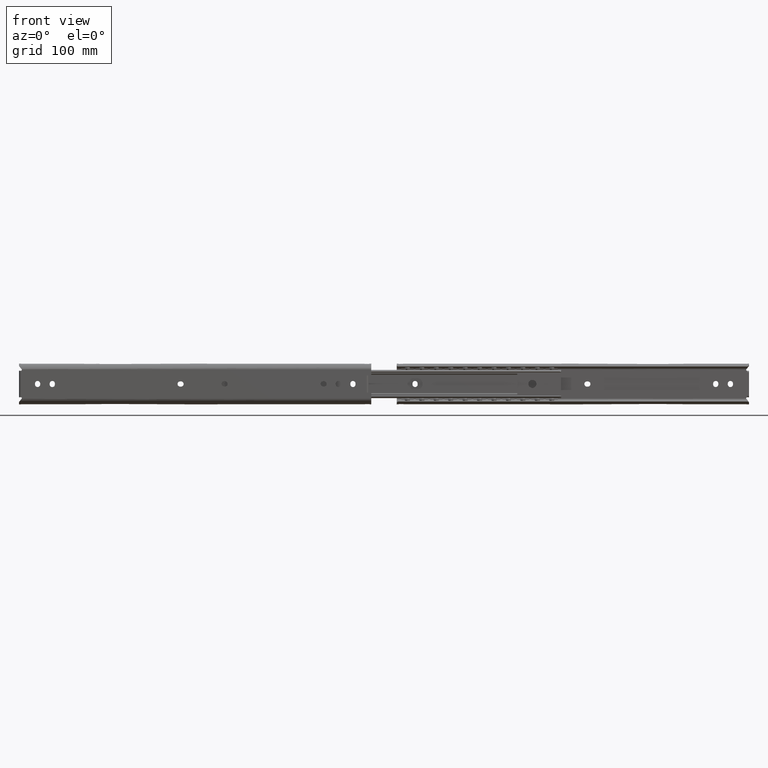
[diagram: clean part render]
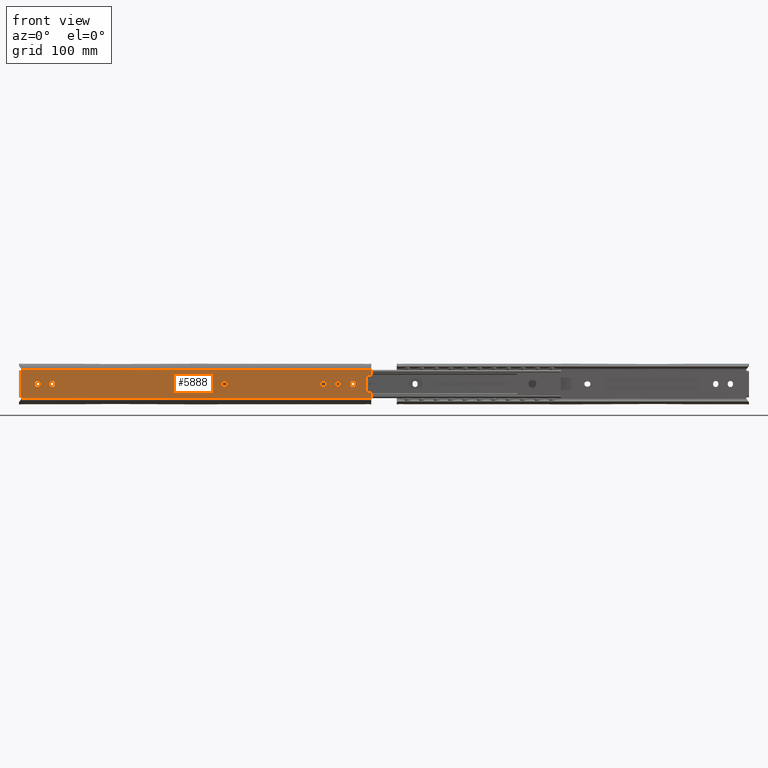
[diagram: same view with one face highlighted and labeled with its STEP entity id]
A machine part, front view. The second image highlights one B-rep face of the part: STEP entity #5888.
In plain terms, the highlighted face is a freeform B-spline surface patch.
Its self-contained STEP definition (entity closure, byte-faithful):
#2580=CARTESIAN_POINT('',(-367.899999999999980,-19.100000000000001,2.250000000000000));
#2581=VERTEX_POINT('',#2580);
#2582=CARTESIAN_POINT('',(-368.700000000000100,-19.100000000000001,2.250000000000000));
#2583=VERTEX_POINT('',#2582);
#2584=CARTESIAN_POINT('',(-367.899999999999980,-19.100000000000001,2.250000000000000));
#2585=CARTESIAN_POINT('',(-368.700000000000100,-19.100000000000001,2.250000000000000));
#2586=QUASI_UNIFORM_CURVE('',1,(#2584,#2585),.UNSPECIFIED.,.F.,.U.);
#2587=EDGE_CURVE('',#2581,#2583,#2586,.T.);
#2629=CARTESIAN_POINT('',(-368.700000000000100,-19.100000000000001,-2.250000000000000));
#2630=VERTEX_POINT('',#2629);
#2631=CARTESIAN_POINT('',(-368.700000000000100,-19.100000000000001,-2.249999999999999));
#2632=CARTESIAN_POINT('',(-370.950000000000050,-19.099999999999991,-2.249999999999999));
#2633=CARTESIAN_POINT('',(-370.949999999999990,-19.100000000000001,1.169499E-015));
#2634=CARTESIAN_POINT('',(-370.950000000000050,-19.099999999999991,2.250000000000002));
#2635=CARTESIAN_POINT('',(-368.700000000000100,-19.100000000000001,2.250000000000001));
#2643=(BOUNDED_CURVE()B_SPLINE_CURVE(2,(#2631,#2632,#2633,#2634,#2635),.UNSPECIFIED.,.F.,.U.)B_SPLINE_CURVE_WITH_KNOTS((3,2,3),(0.0,0.500000000000000,1.0),.UNSPECIFIED.)CURVE()GEOMETRIC_REPRESENTATION_ITEM()RATIONAL_B_SPLINE_CURVE((1.0,0.707106781186547,1.0,0.707106781186547,1.0))REPRESENTATION_ITEM(''));
#2644=EDGE_CURVE('',#2630,#2583,#2643,.T.);
#2677=CARTESIAN_POINT('',(-367.899999999999980,-19.100000000000001,-2.250000000000000));
#2678=VERTEX_POINT('',#2677);
#2679=CARTESIAN_POINT('',(-368.700000000000100,-19.100000000000001,-2.250000000000000));
#2680=CARTESIAN_POINT('',(-367.899999999999980,-19.100000000000001,-2.250000000000000));
#2681=QUASI_UNIFORM_CURVE('',1,(#2679,#2680),.UNSPECIFIED.,.F.,.U.);
#2682=EDGE_CURVE('',#2630,#2678,#2681,.T.);
#2718=CARTESIAN_POINT('',(-367.899999999999980,-19.100000000000001,2.250000000000001));
#2719=CARTESIAN_POINT('',(-365.650000000000090,-19.099999999999991,2.250000000000002));
#2720=CARTESIAN_POINT('',(-365.649999999999980,-19.100000000000001,1.169499E-015));
#2721=CARTESIAN_POINT('',(-365.650000000000090,-19.099999999999991,-2.249999999999999));
#2722=CARTESIAN_POINT('',(-367.899999999999980,-19.100000000000001,-2.249999999999999));
#2730=(BOUNDED_CURVE()B_SPLINE_CURVE(2,(#2718,#2719,#2720,#2721,#2722),.UNSPECIFIED.,.F.,.U.)B_SPLINE_CURVE_WITH_KNOTS((3,2,3),(0.0,0.500000000000000,1.0),.UNSPECIFIED.)CURVE()GEOMETRIC_REPRESENTATION_ITEM()RATIONAL_B_SPLINE_CURVE((1.0,0.707106781186547,1.0,0.707106781186547,1.0))REPRESENTATION_ITEM(''));
#2731=EDGE_CURVE('',#2581,#2678,#2730,.T.);
#2771=CARTESIAN_POINT('',(-353.350000000000020,-19.100000000000001,-0.400000000000204));
#2772=VERTEX_POINT('',#2771);
#2773=CARTESIAN_POINT('',(-357.850000000000020,-19.100000000000001,-0.400000000000204));
#2774=VERTEX_POINT('',#2773);
#2775=CARTESIAN_POINT('',(-353.350000000000080,-19.100000000000001,-0.400000000000204));
#2776=CARTESIAN_POINT('',(-353.350000000000080,-19.099999999999991,-2.650000000000204));
#2777=CARTESIAN_POINT('',(-355.600000000000020,-19.100000000000001,-2.650000000000203));
#2778=CARTESIAN_POINT('',(-357.849999999999970,-19.099999999999991,-2.650000000000204));
#2779=CARTESIAN_POINT('',(-357.850000000000020,-19.100000000000001,-0.400000000000204));
#2787=(BOUNDED_CURVE()B_SPLINE_CURVE(2,(#2775,#2776,#2777,#2778,#2779),.UNSPECIFIED.,.F.,.U.)B_SPLINE_CURVE_WITH_KNOTS((3,2,3),(0.0,0.500000000000000,1.0),.UNSPECIFIED.)CURVE()GEOMETRIC_REPRESENTATION_ITEM()RATIONAL_B_SPLINE_CURVE((1.0,0.707106781186547,1.0,0.707106781186547,1.0))REPRESENTATION_ITEM(''));
#2788=EDGE_CURVE('',#2772,#2774,#2787,.T.);
#2827=CARTESIAN_POINT('',(-357.850000000000020,-19.100000000000001,0.399999999999808));
#2828=VERTEX_POINT('',#2827);
#2829=CARTESIAN_POINT('',(-357.850000000000020,-19.100000000000001,0.399999999999808));
#2830=CARTESIAN_POINT('',(-357.850000000000020,-19.100000000000001,-0.400000000000204));
#2831=QUASI_UNIFORM_CURVE('',1,(#2829,#2830),.UNSPECIFIED.,.F.,.U.);
#2832=EDGE_CURVE('',#2828,#2774,#2831,.T.);
#2868=CARTESIAN_POINT('',(-353.350000000000020,-19.100000000000001,0.399999999999808));
#2869=VERTEX_POINT('',#2868);
#2870=CARTESIAN_POINT('',(-357.850000000000020,-19.100000000000001,0.399999999999808));
#2871=CARTESIAN_POINT('',(-357.849999999999970,-19.099999999999991,2.649999999999808));
#2872=CARTESIAN_POINT('',(-355.600000000000020,-19.100000000000001,2.649999999999808));
#2873=CARTESIAN_POINT('',(-353.350000000000080,-19.099999999999991,2.649999999999808));
#2874=CARTESIAN_POINT('',(-353.350000000000080,-19.100000000000001,0.399999999999808));
#2882=(BOUNDED_CURVE()B_SPLINE_CURVE(2,(#2870,#2871,#2872,#2873,#2874),.UNSPECIFIED.,.F.,.U.)B_SPLINE_CURVE_WITH_KNOTS((3,2,3),(0.0,0.500000000000000,1.0),.UNSPECIFIED.)CURVE()GEOMETRIC_REPRESENTATION_ITEM()RATIONAL_B_SPLINE_CURVE((1.0,0.707106781186547,1.0,0.707106781186547,1.0))REPRESENTATION_ITEM(''));
#2883=EDGE_CURVE('',#2828,#2869,#2882,.T.);
#2916=CARTESIAN_POINT('',(-353.350000000000020,-19.100000000000001,-0.400000000000204));
#2917=CARTESIAN_POINT('',(-353.350000000000020,-19.100000000000001,0.399999999999808));
#2918=QUASI_UNIFORM_CURVE('',1,(#2916,#2917),.UNSPECIFIED.,.F.,.U.);
#2919=EDGE_CURVE('',#2772,#2869,#2918,.T.);
#2936=CARTESIAN_POINT('',(-340.649999999999980,-19.100000000000001,0.400000000000007));
#2937=VERTEX_POINT('',#2936);
#2938=CARTESIAN_POINT('',(-340.649999999999980,-19.100000000000001,-0.400000000000090));
#2939=VERTEX_POINT('',#2938);
#2940=CARTESIAN_POINT('',(-340.649999999999980,-19.100000000000001,0.400000000000007));
#2941=CARTESIAN_POINT('',(-340.649999999999980,-19.100000000000001,-0.400000000000090));
#2942=QUASI_UNIFORM_CURVE('',1,(#2940,#2941),.UNSPECIFIED.,.F.,.U.);
#2943=EDGE_CURVE('',#2937,#2939,#2942,.T.);
#2985=CARTESIAN_POINT('',(-345.149999999999980,-19.100000000000001,0.400000000000007));
#2986=VERTEX_POINT('',#2985);
#2987=CARTESIAN_POINT('',(-345.149999999999980,-19.100000000000001,0.400000000000007));
#2988=CARTESIAN_POINT('',(-345.149999999999920,-19.099999999999991,2.650000000000008));
#2989=CARTESIAN_POINT('',(-342.899999999999980,-19.100000000000001,2.650000000000007));
#2990=CARTESIAN_POINT('',(-340.650000000000030,-19.099999999999991,2.650000000000008));
#2991=CARTESIAN_POINT('',(-340.649999999999980,-19.100000000000001,0.400000000000007));
#2999=(BOUNDED_CURVE()B_SPLINE_CURVE(2,(#2987,#2988,#2989,#2990,#2991),.UNSPECIFIED.,.F.,.U.)B_SPLINE_CURVE_WITH_KNOTS((3,2,3),(0.0,0.500000000000000,1.0),.UNSPECIFIED.)CURVE()GEOMETRIC_REPRESENTATION_ITEM()RATIONAL_B_SPLINE_CURVE((1.0,0.707106781186547,1.0,0.707106781186547,1.0))REPRESENTATION_ITEM(''));
#3000=EDGE_CURVE('',#2986,#2937,#2999,.T.);
#3033=CARTESIAN_POINT('',(-345.149999999999980,-19.100000000000001,-0.400000000000090));
#3034=VERTEX_POINT('',#3033);
#3035=CARTESIAN_POINT('',(-345.149999999999980,-19.100000000000001,-0.400000000000090));
#3036=CARTESIAN_POINT('',(-345.149999999999980,-19.100000000000001,0.400000000000007));
#3037=QUASI_UNIFORM_CURVE('',1,(#3035,#3036),.UNSPECIFIED.,.F.,.U.);
#3038=EDGE_CURVE('',#3034,#2986,#3037,.T.);
#3074=CARTESIAN_POINT('',(-340.649999999999980,-19.100000000000001,-0.400000000000090));
#3075=CARTESIAN_POINT('',(-340.650000000000030,-19.099999999999991,-2.650000000000090));
#3076=CARTESIAN_POINT('',(-342.899999999999980,-19.100000000000001,-2.650000000000090));
#3077=CARTESIAN_POINT('',(-345.149999999999920,-19.099999999999991,-2.650000000000090));
#3078=CARTESIAN_POINT('',(-345.149999999999980,-19.100000000000001,-0.400000000000090));
#3086=(BOUNDED_CURVE()B_SPLINE_CURVE(2,(#3074,#3075,#3076,#3077,#3078),.UNSPECIFIED.,.F.,.U.)B_SPLINE_CURVE_WITH_KNOTS((3,2,3),(0.0,0.500000000000000,1.0),.UNSPECIFIED.)CURVE()GEOMETRIC_REPRESENTATION_ITEM()RATIONAL_B_SPLINE_CURVE((1.0,0.707106781186547,1.0,0.707106781186547,1.0))REPRESENTATION_ITEM(''));
#3087=EDGE_CURVE('',#2939,#3034,#3086,.T.);
#3116=CARTESIAN_POINT('',(-454.399999999999980,-19.100000000000001,-2.250000000000200));
#3117=VERTEX_POINT('',#3116);
#3123=CARTESIAN_POINT('',(-453.600000000000020,-19.100000000000001,-2.250000000000000));
#3124=VERTEX_POINT('',#3123);
#3125=CARTESIAN_POINT('',(-453.600000000000020,-19.100000000000001,-2.250000000000000));
#3126=CARTESIAN_POINT('',(-454.399999999999980,-19.100000000000001,-2.250000000000200));
#3127=QUASI_UNIFORM_CURVE('',1,(#3125,#3126),.UNSPECIFIED.,.F.,.U.);
#3128=EDGE_CURVE('',#3124,#3117,#3127,.T.);
#3164=CARTESIAN_POINT('',(-453.600000000000020,-19.100000000000001,2.250000000000000));
#3165=VERTEX_POINT('',#3164);
#3166=CARTESIAN_POINT('',(-453.600000000000020,-19.100000000000001,2.250000000000001));
#3167=CARTESIAN_POINT('',(-451.350000000000020,-19.099999999999991,2.250000000000002));
#3168=CARTESIAN_POINT('',(-451.350000000000020,-19.100000000000001,1.169499E-015));
#3169=CARTESIAN_POINT('',(-451.350000000000020,-19.099999999999991,-2.249999999999999));
#3170=CARTESIAN_POINT('',(-453.600000000000020,-19.100000000000001,-2.249999999999999));
#3178=(BOUNDED_CURVE()B_SPLINE_CURVE(2,(#3166,#3167,#3168,#3169,#3170),.UNSPECIFIED.,.F.,.U.)B_SPLINE_CURVE_WITH_KNOTS((3,2,3),(0.0,0.500000000000000,1.0),.UNSPECIFIED.)CURVE()GEOMETRIC_REPRESENTATION_ITEM()RATIONAL_B_SPLINE_CURVE((1.0,0.707106781186547,1.0,0.707106781186547,1.0))REPRESENTATION_ITEM(''));
#3179=EDGE_CURVE('',#3165,#3124,#3178,.T.);
#3212=CARTESIAN_POINT('',(-454.399999999999980,-19.100000000000001,2.250000000000000));
#3213=VERTEX_POINT('',#3212);
#3214=CARTESIAN_POINT('',(-454.399999999999980,-19.100000000000001,2.250000000000000));
#3215=CARTESIAN_POINT('',(-453.600000000000020,-19.100000000000001,2.250000000000000));
#3216=QUASI_UNIFORM_CURVE('',1,(#3214,#3215),.UNSPECIFIED.,.F.,.U.);
#3217=EDGE_CURVE('',#3213,#3165,#3216,.T.);
#3253=CARTESIAN_POINT('',(-454.399999999999980,-19.100000000000001,-2.249999999999999));
#3254=CARTESIAN_POINT('',(-456.650000000000030,-19.099999999999991,-2.249999999999999));
#3255=CARTESIAN_POINT('',(-456.649999999999980,-19.100000000000001,1.169499E-015));
#3256=CARTESIAN_POINT('',(-456.650000000000030,-19.099999999999991,2.250000000000002));
#3257=CARTESIAN_POINT('',(-454.399999999999980,-19.100000000000001,2.250000000000001));
#3265=(BOUNDED_CURVE()B_SPLINE_CURVE(2,(#3253,#3254,#3255,#3256,#3257),.UNSPECIFIED.,.F.,.U.)B_SPLINE_CURVE_WITH_KNOTS((3,2,3),(0.0,0.500000000000000,1.0),.UNSPECIFIED.)CURVE()GEOMETRIC_REPRESENTATION_ITEM()RATIONAL_B_SPLINE_CURVE((1.0,0.707106781186547,1.0,0.707106781186547,1.0))REPRESENTATION_ITEM(''));
#3266=EDGE_CURVE('',#3117,#3213,#3265,.T.);
#3294=CARTESIAN_POINT('',(-491.700000000000100,-19.100000000000001,2.250000000000000));
#3295=VERTEX_POINT('',#3294);
#3301=CARTESIAN_POINT('',(-492.500000000000000,-19.100000000000001,2.250000000000000));
#3302=VERTEX_POINT('',#3301);
#3303=CARTESIAN_POINT('',(-492.500000000000000,-19.100000000000001,2.250000000000000));
#3304=CARTESIAN_POINT('',(-491.700000000000100,-19.100000000000001,2.250000000000000));
#3305=QUASI_UNIFORM_CURVE('',1,(#3303,#3304),.UNSPECIFIED.,.F.,.U.);
#3306=EDGE_CURVE('',#3302,#3295,#3305,.T.);
#3342=CARTESIAN_POINT('',(-492.500000000000000,-19.100000000000001,-2.250000000000200));
#3343=VERTEX_POINT('',#3342);
#3344=CARTESIAN_POINT('',(-492.500000000000000,-19.100000000000001,-2.249999999999999));
#3345=CARTESIAN_POINT('',(-494.749999999999890,-19.099999999999991,-2.249999999999999));
#3346=CARTESIAN_POINT('',(-494.749999999999890,-19.100000000000001,1.169499E-015));
#3347=CARTESIAN_POINT('',(-494.749999999999890,-19.099999999999991,2.250000000000002));
#3348=CARTESIAN_POINT('',(-492.500000000000000,-19.100000000000001,2.250000000000001));
#3356=(BOUNDED_CURVE()B_SPLINE_CURVE(2,(#3344,#3345,#3346,#3347,#3348),.UNSPECIFIED.,.F.,.U.)B_SPLINE_CURVE_WITH_KNOTS((3,2,3),(0.0,0.500000000000000,1.0),.UNSPECIFIED.)CURVE()GEOMETRIC_REPRESENTATION_ITEM()RATIONAL_B_SPLINE_CURVE((1.0,0.707106781186547,1.0,0.707106781186547,1.0))REPRESENTATION_ITEM(''));
#3357=EDGE_CURVE('',#3343,#3302,#3356,.T.);
#3390=CARTESIAN_POINT('',(-491.700000000000100,-19.100000000000001,-2.250000000000200));
#3391=VERTEX_POINT('',#3390);
#3392=CARTESIAN_POINT('',(-491.700000000000100,-19.100000000000001,-2.250000000000200));
#3393=CARTESIAN_POINT('',(-492.500000000000000,-19.100000000000001,-2.250000000000200));
#3394=QUASI_UNIFORM_CURVE('',1,(#3392,#3393),.UNSPECIFIED.,.F.,.U.);
#3395=EDGE_CURVE('',#3391,#3343,#3394,.T.);
#3431=CARTESIAN_POINT('',(-491.700000000000100,-19.100000000000001,2.250000000000001));
#3432=CARTESIAN_POINT('',(-489.450000000000050,-19.099999999999991,2.250000000000002));
#3433=CARTESIAN_POINT('',(-489.450000000000100,-19.100000000000001,1.169499E-015));
#3434=CARTESIAN_POINT('',(-489.450000000000050,-19.099999999999991,-2.249999999999999));
#3435=CARTESIAN_POINT('',(-491.700000000000100,-19.100000000000001,-2.249999999999999));
#3443=(BOUNDED_CURVE()B_SPLINE_CURVE(2,(#3431,#3432,#3433,#3434,#3435),.UNSPECIFIED.,.F.,.U.)B_SPLINE_CURVE_WITH_KNOTS((3,2,3),(0.0,0.500000000000000,1.0),.UNSPECIFIED.)CURVE()GEOMETRIC_REPRESENTATION_ITEM()RATIONAL_B_SPLINE_CURVE((1.0,0.707106781186547,1.0,0.707106781186547,1.0))REPRESENTATION_ITEM(''));
#3444=EDGE_CURVE('',#3295,#3391,#3443,.T.);
#3485=CARTESIAN_POINT('',(-613.649999999999980,-19.100000000000001,0.400000000000007));
#3486=VERTEX_POINT('',#3485);
#3492=CARTESIAN_POINT('',(-618.149999999999980,-19.100000000000001,0.400000000000007));
#3493=VERTEX_POINT('',#3492);
#3494=CARTESIAN_POINT('',(-618.149999999999980,-19.100000000000001,0.400000000000007));
#3495=CARTESIAN_POINT('',(-618.149999999999980,-19.099999999999991,2.650000000000008));
#3496=CARTESIAN_POINT('',(-615.899999999999980,-19.100000000000001,2.650000000000007));
#3497=CARTESIAN_POINT('',(-613.650000000000090,-19.099999999999991,2.650000000000008));
#3498=CARTESIAN_POINT('',(-613.649999999999980,-19.100000000000001,0.400000000000007));
#3506=(BOUNDED_CURVE()B_SPLINE_CURVE(2,(#3494,#3495,#3496,#3497,#3498),.UNSPECIFIED.,.F.,.U.)B_SPLINE_CURVE_WITH_KNOTS((3,2,3),(0.0,0.500000000000000,1.0),.UNSPECIFIED.)CURVE()GEOMETRIC_REPRESENTATION_ITEM()RATIONAL_B_SPLINE_CURVE((1.0,0.707106781186547,1.0,0.707106781186547,1.0))REPRESENTATION_ITEM(''));
#3507=EDGE_CURVE('',#3493,#3486,#3506,.T.);
#3546=CARTESIAN_POINT('',(-613.649999999999980,-19.100000000000001,-0.400000000000090));
#3547=VERTEX_POINT('',#3546);
#3553=CARTESIAN_POINT('',(-613.649999999999980,-19.100000000000001,-0.400000000000090));
#3554=CARTESIAN_POINT('',(-613.649999999999980,-19.100000000000001,0.400000000000007));
#3555=QUASI_UNIFORM_CURVE('',1,(#3553,#3554),.UNSPECIFIED.,.F.,.U.);
#3556=EDGE_CURVE('',#3547,#3486,#3555,.T.);
#3582=CARTESIAN_POINT('',(-618.149999999999980,-19.100000000000001,-0.400000000000090));
#3583=VERTEX_POINT('',#3582);
#3589=CARTESIAN_POINT('',(-613.649999999999980,-19.100000000000001,-0.400000000000090));
#3590=CARTESIAN_POINT('',(-613.650000000000090,-19.099999999999991,-2.650000000000090));
#3591=CARTESIAN_POINT('',(-615.899999999999980,-19.100000000000001,-2.650000000000090));
#3592=CARTESIAN_POINT('',(-618.149999999999980,-19.099999999999991,-2.650000000000090));
#3593=CARTESIAN_POINT('',(-618.149999999999980,-19.100000000000001,-0.400000000000090));
#3601=(BOUNDED_CURVE()B_SPLINE_CURVE(2,(#3589,#3590,#3591,#3592,#3593),.UNSPECIFIED.,.F.,.U.)B_SPLINE_CURVE_WITH_KNOTS((3,2,3),(0.0,0.500000000000000,1.0),.UNSPECIFIED.)CURVE()GEOMETRIC_REPRESENTATION_ITEM()RATIONAL_B_SPLINE_CURVE((1.0,0.707106781186547,1.0,0.707106781186547,1.0))REPRESENTATION_ITEM(''));
#3602=EDGE_CURVE('',#3547,#3583,#3601,.T.);
#3634=CARTESIAN_POINT('',(-618.149999999999980,-19.100000000000001,0.400000000000007));
#3635=CARTESIAN_POINT('',(-618.149999999999980,-19.100000000000001,-0.400000000000090));
#3636=QUASI_UNIFORM_CURVE('',1,(#3634,#3635),.UNSPECIFIED.,.F.,.U.);
#3637=EDGE_CURVE('',#3493,#3583,#3636,.T.);
#3650=CARTESIAN_POINT('',(-605.450000000000050,-19.100000000000001,0.400000000000008));
#3651=VERTEX_POINT('',#3650);
#3657=CARTESIAN_POINT('',(-605.450000000000050,-19.100000000000001,-0.400000000000091));
#3658=VERTEX_POINT('',#3657);
#3659=CARTESIAN_POINT('',(-605.450000000000050,-19.100000000000001,-0.400000000000091));
#3660=CARTESIAN_POINT('',(-605.450000000000050,-19.100000000000001,0.400000000000008));
#3661=QUASI_UNIFORM_CURVE('',1,(#3659,#3660),.UNSPECIFIED.,.F.,.U.);
#3662=EDGE_CURVE('',#3658,#3651,#3661,.T.);
#3698=CARTESIAN_POINT('',(-600.949999999999930,-19.100000000000001,-0.400000000000090));
#3699=VERTEX_POINT('',#3698);
#3700=CARTESIAN_POINT('',(-600.949999999999930,-19.100000000000001,-0.400000000000090));
#3701=CARTESIAN_POINT('',(-600.950000000000050,-19.099999999999991,-2.650000000000090));
#3702=CARTESIAN_POINT('',(-603.199999999999930,-19.100000000000001,-2.650000000000090));
#3703=CARTESIAN_POINT('',(-605.449999999999930,-19.099999999999991,-2.650000000000090));
#3704=CARTESIAN_POINT('',(-605.449999999999930,-19.100000000000001,-0.400000000000090));
#3712=(BOUNDED_CURVE()B_SPLINE_CURVE(2,(#3700,#3701,#3702,#3703,#3704),.UNSPECIFIED.,.F.,.U.)B_SPLINE_CURVE_WITH_KNOTS((3,2,3),(0.0,0.500000000000000,1.0),.UNSPECIFIED.)CURVE()GEOMETRIC_REPRESENTATION_ITEM()RATIONAL_B_SPLINE_CURVE((1.0,0.707106781186547,1.0,0.707106781186547,1.0))REPRESENTATION_ITEM(''));
#3713=EDGE_CURVE('',#3699,#3658,#3712,.T.);
#3746=CARTESIAN_POINT('',(-600.949999999999930,-19.100000000000001,0.400000000000007));
#3747=VERTEX_POINT('',#3746);
#3748=CARTESIAN_POINT('',(-600.949999999999930,-19.100000000000001,0.400000000000007));
#3749=CARTESIAN_POINT('',(-600.949999999999930,-19.100000000000001,-0.400000000000090));
#3750=QUASI_UNIFORM_CURVE('',1,(#3748,#3749),.UNSPECIFIED.,.F.,.U.);
#3751=EDGE_CURVE('',#3747,#3699,#3750,.T.);
#3787=CARTESIAN_POINT('',(-605.449999999999930,-19.100000000000001,0.400000000000007));
#3788=CARTESIAN_POINT('',(-605.449999999999930,-19.099999999999991,2.650000000000008));
#3789=CARTESIAN_POINT('',(-603.199999999999930,-19.100000000000001,2.650000000000007));
#3790=CARTESIAN_POINT('',(-600.950000000000050,-19.099999999999991,2.650000000000008));
#3791=CARTESIAN_POINT('',(-600.949999999999930,-19.100000000000001,0.400000000000007));
#3799=(BOUNDED_CURVE()B_SPLINE_CURVE(2,(#3787,#3788,#3789,#3790,#3791),.UNSPECIFIED.,.F.,.U.)B_SPLINE_CURVE_WITH_KNOTS((3,2,3),(0.0,0.500000000000000,1.0),.UNSPECIFIED.)CURVE()GEOMETRIC_REPRESENTATION_ITEM()RATIONAL_B_SPLINE_CURVE((1.0,0.707106781186547,1.0,0.707106781186547,1.0))REPRESENTATION_ITEM(''));
#3800=EDGE_CURVE('',#3651,#3747,#3799,.T.);
#4207=CARTESIAN_POINT('',(-630.399999999999980,-19.100000000000001,-11.500000000000000));
#4208=VERTEX_POINT('',#4207);
#4224=CARTESIAN_POINT('',(-630.399999999999980,-19.100000000000001,11.500000000000000));
#4225=VERTEX_POINT('',#4224);
#4226=CARTESIAN_POINT('',(-630.399999999999980,-19.100000000000001,11.500000000000000));
#4227=CARTESIAN_POINT('',(-630.399999999999980,-19.100000000000001,-11.500000000000000));
#4228=QUASI_UNIFORM_CURVE('',1,(#4226,#4227),.UNSPECIFIED.,.F.,.U.);
#4229=EDGE_CURVE('',#4225,#4208,#4228,.T.);
#4272=CARTESIAN_POINT('',(-331.100000000000020,-19.100000000000001,-7.500000000000200));
#4273=VERTEX_POINT('',#4272);
#4294=CARTESIAN_POINT('',(-331.100000000000020,-19.100000000000001,7.500000000000000));
#4295=VERTEX_POINT('',#4294);
#4309=CARTESIAN_POINT('',(-331.100000000000020,-19.100000000000001,-7.500000000000200));
#4310=CARTESIAN_POINT('',(-331.100000000000020,-19.100000000000001,7.500000000000000));
#4311=QUASI_UNIFORM_CURVE('',1,(#4309,#4310),.UNSPECIFIED.,.F.,.U.);
#4312=EDGE_CURVE('',#4273,#4295,#4311,.T.);
#4426=CARTESIAN_POINT('',(-327.0,-19.100000000000001,7.500000000000000));
#4427=VERTEX_POINT('',#4426);
#4428=CARTESIAN_POINT('',(-331.100000000000020,-19.100000000000001,7.500000000000000));
#4429=CARTESIAN_POINT('',(-327.0,-19.100000000000001,7.500000000000000));
#4430=QUASI_UNIFORM_CURVE('',1,(#4428,#4429),.UNSPECIFIED.,.F.,.U.);
#4431=EDGE_CURVE('',#4295,#4427,#4430,.T.);
#4466=CARTESIAN_POINT('',(-327.0,-19.100000000000001,-7.500000000000200));
#4467=VERTEX_POINT('',#4466);
#4468=CARTESIAN_POINT('',(-327.0,-19.100000000000001,-7.500000000000200));
#4469=CARTESIAN_POINT('',(-331.100000000000020,-19.100000000000001,-7.500000000000200));
#4470=QUASI_UNIFORM_CURVE('',1,(#4468,#4469),.UNSPECIFIED.,.F.,.U.);
#4471=EDGE_CURVE('',#4467,#4273,#4470,.T.);
#4716=CARTESIAN_POINT('',(-629.639865253740030,-19.100000000000001,-12.578916000000000));
#4717=VERTEX_POINT('',#4716);
#4725=CARTESIAN_POINT('',(-629.639865253739800,-19.100000000000001,-12.578916000000079));
#4726=CARTESIAN_POINT('',(-629.498933981360550,-19.100000000000005,-12.184613891433479));
#4727=CARTESIAN_POINT('',(-629.740101415456820,-19.100000000000001,-11.842306945716739));
#4728=CARTESIAN_POINT('',(-629.981268849553320,-19.100000000000005,-11.499999999999998));
#4729=CARTESIAN_POINT('',(-630.399999999999980,-19.100000000000001,-11.500000000000000));
#4737=(BOUNDED_CURVE()B_SPLINE_CURVE(2,(#4725,#4726,#4727,#4728,#4729),.UNSPECIFIED.,.F.,.U.)B_SPLINE_CURVE_WITH_KNOTS((3,2,3),(0.0,0.500000000000000,1.0),.UNSPECIFIED.)CURVE()GEOMETRIC_REPRESENTATION_ITEM()RATIONAL_B_SPLINE_CURVE((1.0,0.887679040060784,1.0,0.887679040060784,1.0))REPRESENTATION_ITEM(''));
#4738=EDGE_CURVE('',#4717,#4208,#4737,.T.);
#5191=CARTESIAN_POINT('',(-629.639865253740030,-19.100000000000001,12.578915999999900));
#5192=VERTEX_POINT('',#5191);
#5193=CARTESIAN_POINT('',(-629.639865253739800,-19.100000000000001,12.578915999999991));
#5194=CARTESIAN_POINT('',(-629.498933981360550,-19.099999999999991,12.184613891433395));
#5195=CARTESIAN_POINT('',(-629.740101415456930,-19.100000000000001,11.842306945716700));
#5196=CARTESIAN_POINT('',(-629.981268849553320,-19.099999999999991,11.500000000000004));
#5197=CARTESIAN_POINT('',(-630.399999999999980,-19.100000000000001,11.500000000000000));
#5205=(BOUNDED_CURVE()B_SPLINE_CURVE(2,(#5193,#5194,#5195,#5196,#5197),.UNSPECIFIED.,.F.,.U.)B_SPLINE_CURVE_WITH_KNOTS((3,2,3),(0.0,0.500000000000000,1.0),.UNSPECIFIED.)CURVE()GEOMETRIC_REPRESENTATION_ITEM()RATIONAL_B_SPLINE_CURVE((1.0,0.887679040060798,1.0,0.887679040060798,1.0))REPRESENTATION_ITEM(''));
#5206=EDGE_CURVE('',#5192,#4225,#5205,.T.);
#5619=CARTESIAN_POINT('',(-327.0,-19.100000000000001,12.578915999999900));
#5620=VERTEX_POINT('',#5619);
#5621=CARTESIAN_POINT('',(-327.0,-19.100000000000001,12.578915999999900));
#5622=CARTESIAN_POINT('',(-629.639865253740030,-19.100000000000001,12.578915999999900));
#5623=QUASI_UNIFORM_CURVE('',1,(#5621,#5622),.UNSPECIFIED.,.F.,.U.);
#5624=EDGE_CURVE('',#5620,#5192,#5623,.T.);
#5711=CARTESIAN_POINT('',(-327.0,-19.099999999999749,-12.578916000000000));
#5712=VERTEX_POINT('',#5711);
#5713=CARTESIAN_POINT('',(-327.0,-19.099999999999749,-12.578916000000000));
#5714=CARTESIAN_POINT('',(-629.639865253740030,-19.100000000000001,-12.578916000000000));
#5715=QUASI_UNIFORM_CURVE('',1,(#5713,#5714),.UNSPECIFIED.,.F.,.U.);
#5716=EDGE_CURVE('',#5712,#4717,#5715,.T.);
#5787=CARTESIAN_POINT('',(-327.0,-19.100000000000001,7.500000000000000));
#5788=CARTESIAN_POINT('',(-327.0,-19.100000000000001,12.578915999999900));
#5789=QUASI_UNIFORM_CURVE('',1,(#5787,#5788),.UNSPECIFIED.,.F.,.U.);
#5790=EDGE_CURVE('',#4427,#5620,#5789,.T.);
#5819=CARTESIAN_POINT('',(-327.0,-19.099999999999749,-12.578916000000000));
#5820=CARTESIAN_POINT('',(-327.0,-19.100000000000001,-7.500000000000200));
#5821=QUASI_UNIFORM_CURVE('',1,(#5819,#5820),.UNSPECIFIED.,.F.,.U.);
#5822=EDGE_CURVE('',#5712,#4467,#5821,.T.);
#5829=CARTESIAN_POINT('',(-311.845169504090220,-19.100000000000001,-13.835549333594070));
#5830=CARTESIAN_POINT('',(-311.845169504090220,-19.100000000000001,13.835548433879779));
#5831=CARTESIAN_POINT('',(-645.554860334591240,-19.100000000000001,-13.835549333594070));
#5832=CARTESIAN_POINT('',(-645.554860334591240,-19.100000000000001,13.835548433879779));
#5833=B_SPLINE_SURFACE_WITH_KNOTS('',1,1,((#5829,#5831),(#5830,#5832)),.UNSPECIFIED.,.F.,.F.,.U.,(2,2),(2,2),(0.0,27.671097767473839),(0.0,333.709690830501070),.UNSPECIFIED.);
#5834=ORIENTED_EDGE('',*,*,#5206,.T.);
#5835=ORIENTED_EDGE('',*,*,#4229,.T.);
#5836=ORIENTED_EDGE('',*,*,#4738,.F.);
#5837=ORIENTED_EDGE('',*,*,#5716,.F.);
#5838=ORIENTED_EDGE('',*,*,#5822,.T.);
#5839=ORIENTED_EDGE('',*,*,#4471,.T.);
#5840=ORIENTED_EDGE('',*,*,#4312,.T.);
#5841=ORIENTED_EDGE('',*,*,#4431,.T.);
#5842=ORIENTED_EDGE('',*,*,#5790,.T.);
#5843=ORIENTED_EDGE('',*,*,#5624,.T.);
#5844=EDGE_LOOP('',(#5834,#5835,#5836,#5837,#5838,#5839,#5840,#5841,#5842,#5843));
#5845=FACE_OUTER_BOUND('',#5844,.T.);
#5846=ORIENTED_EDGE('',*,*,#3306,.T.);
#5847=ORIENTED_EDGE('',*,*,#3444,.T.);
#5848=ORIENTED_EDGE('',*,*,#3395,.T.);
#5849=ORIENTED_EDGE('',*,*,#3357,.T.);
#5850=EDGE_LOOP('',(#5846,#5847,#5848,#5849));
#5851=FACE_BOUND('',#5850,.T.);
#5852=ORIENTED_EDGE('',*,*,#3637,.F.);
#5853=ORIENTED_EDGE('',*,*,#3507,.T.);
#5854=ORIENTED_EDGE('',*,*,#3556,.F.);
#5855=ORIENTED_EDGE('',*,*,#3602,.T.);
#5856=EDGE_LOOP('',(#5852,#5853,#5854,#5855));
#5857=FACE_BOUND('',#5856,.T.);
#5858=ORIENTED_EDGE('',*,*,#2943,.T.);
#5859=ORIENTED_EDGE('',*,*,#3087,.T.);
#5860=ORIENTED_EDGE('',*,*,#3038,.T.);
#5861=ORIENTED_EDGE('',*,*,#3000,.T.);
#5862=EDGE_LOOP('',(#5858,#5859,#5860,#5861));
#5863=FACE_BOUND('',#5862,.T.);
#5864=ORIENTED_EDGE('',*,*,#3662,.T.);
#5865=ORIENTED_EDGE('',*,*,#3800,.T.);
#5866=ORIENTED_EDGE('',*,*,#3751,.T.);
#5867=ORIENTED_EDGE('',*,*,#3713,.T.);
#5868=EDGE_LOOP('',(#5864,#5865,#5866,#5867));
#5869=FACE_BOUND('',#5868,.T.);
#5870=ORIENTED_EDGE('',*,*,#3128,.T.);
#5871=ORIENTED_EDGE('',*,*,#3266,.T.);
#5872=ORIENTED_EDGE('',*,*,#3217,.T.);
#5873=ORIENTED_EDGE('',*,*,#3179,.T.);
#5874=EDGE_LOOP('',(#5870,#5871,#5872,#5873));
#5875=FACE_BOUND('',#5874,.T.);
#5876=ORIENTED_EDGE('',*,*,#2919,.F.);
#5877=ORIENTED_EDGE('',*,*,#2788,.T.);
#5878=ORIENTED_EDGE('',*,*,#2832,.F.);
#5879=ORIENTED_EDGE('',*,*,#2883,.T.);
#5880=EDGE_LOOP('',(#5876,#5877,#5878,#5879));
#5881=FACE_BOUND('',#5880,.T.);
#5882=ORIENTED_EDGE('',*,*,#2587,.F.);
#5883=ORIENTED_EDGE('',*,*,#2731,.T.);
#5884=ORIENTED_EDGE('',*,*,#2682,.F.);
#5885=ORIENTED_EDGE('',*,*,#2644,.T.);
#5886=EDGE_LOOP('',(#5882,#5883,#5884,#5885));
#5887=FACE_BOUND('',#5886,.T.);
#5888=ADVANCED_FACE('',(#5845,#5851,#5857,#5863,#5869,#5875,#5881,#5887),#5833,.T.);